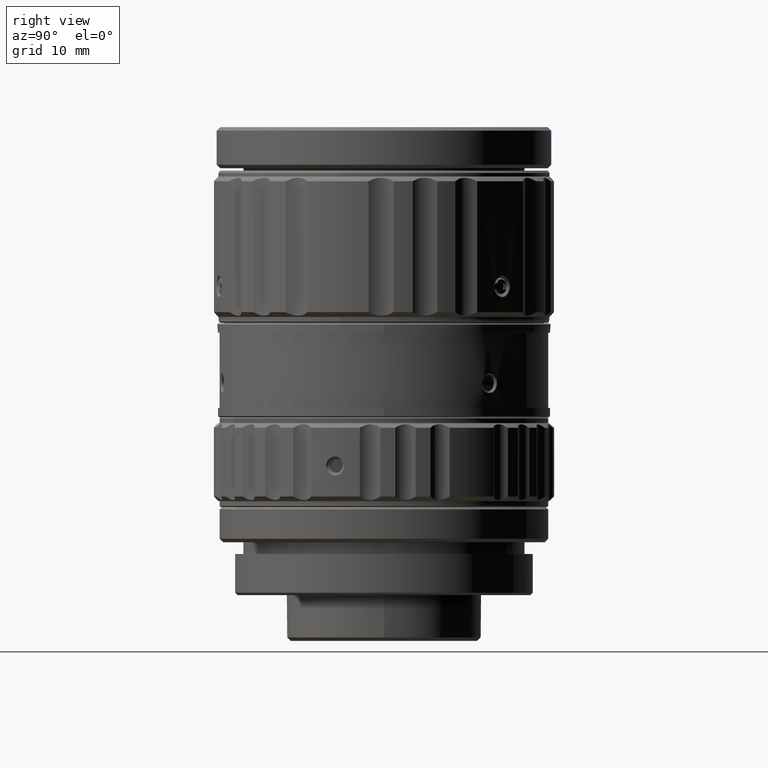
[diagram: clean part render]
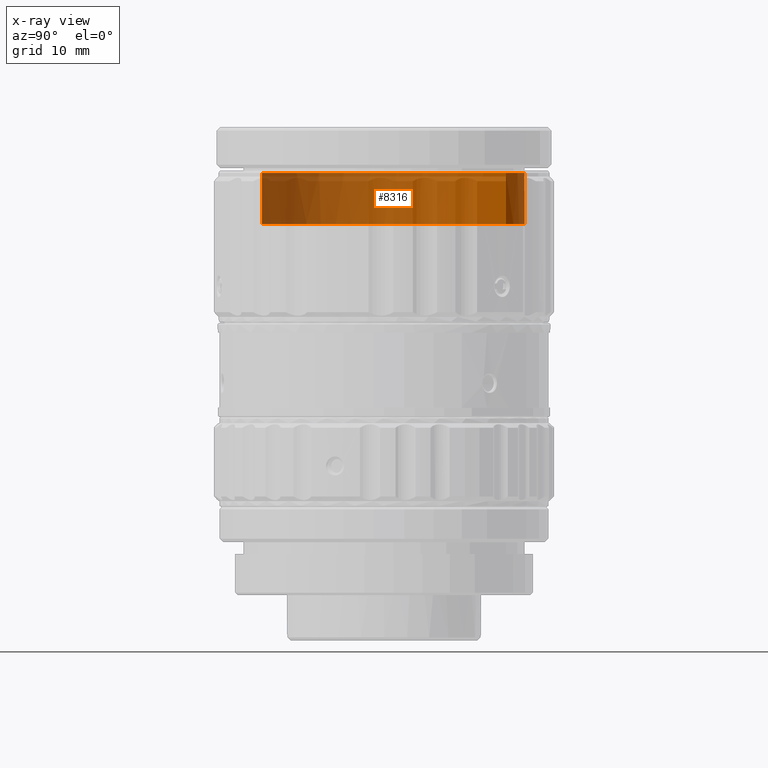
[diagram: x-ray — body ghosted, one internal face saturated and labeled with its STEP entity id]
A machine part, right view, then the same camera in x-ray: the body is ghosted and one INTERNAL B-rep face — a face not visible from any outside direction — is saturated and labeled: STEP entity #8316.
In plain terms, the highlighted cylindrical surface (partial cylindrical patch) has radius 12 mm, axis along (0, 0, 1).
Its self-contained STEP definition (entity closure, byte-faithful):
#1952 = CIRCLE ( 'NONE', #9285, 12.00000728003000106 ) ;
#4436 = DIRECTION ( 'NONE',  ( -0.4999999999999731326, -0.8660254037844541397, 0.000000000000000000 ) ) ;
#7149 = CARTESIAN_POINT ( 'NONE',  ( 6.000003640014679895, 10.39231115010436746, 27.05000483460329974 ) ) ;
#8316 = ADVANCED_FACE ( 'NONE', ( #38855 ), #34539, .F. ) ;
#9285 = AXIS2_PLACEMENT_3D ( 'NONE', #55367, #42496, #28707 ) ;
#9627 = VERTEX_POINT ( 'NONE', #44480 ) ;
#9981 = CARTESIAN_POINT ( 'NONE',  ( 0.000000000000000000, 0.000000000000000000, 22.70000000000000284 ) ) ;
#11582 = DIRECTION ( 'NONE',  ( 0.000000000000000000, 0.000000000000000000, 1.000000000000000000 ) ) ;
#12864 = VERTEX_POINT ( 'NONE', #7149 ) ;
#13243 = AXIS2_PLACEMENT_3D ( 'NONE', #55751, #25645, #4436 ) ;
#17354 = VERTEX_POINT ( 'NONE', #52924 ) ;
#19474 = VECTOR ( 'NONE', #44453, 1000.000000000000000 ) ;
#19937 = CARTESIAN_POINT ( 'NONE',  ( -6.000003640014678119, -10.39231115010436923, 22.70000000000000284 ) ) ;
#20670 = VECTOR ( 'NONE', #20932, 1000.000000000000000 ) ;
#20932 = DIRECTION ( 'NONE',  ( 0.000000000000000000, 0.000000000000000000, 1.000000000000000000 ) ) ;
#21194 = ORIENTED_EDGE ( 'NONE', *, *, #34031, .T. ) ;
#22083 = ORIENTED_EDGE ( 'NONE', *, *, #22300, .F. ) ;
#22300 = EDGE_CURVE ( 'NONE', #36477, #9627, #35857, .T. ) ;
#25645 = DIRECTION ( 'NONE',  ( 0.000000000000000000, 0.000000000000000000, 1.000000000000000000 ) ) ;
#27441 = DIRECTION ( 'NONE',  ( -1.000000000000000000, 0.000000000000000000, 0.000000000000000000 ) ) ;
#27731 = CIRCLE ( 'NONE', #47895, 12.00000728003000106 ) ;
#28707 = DIRECTION ( 'NONE',  ( 1.000000000000000000, 0.000000000000000000, 0.000000000000000000 ) ) ;
#29048 = DIRECTION ( 'NONE',  ( 1.000000000000000000, 0.000000000000000000, 0.000000000000000000 ) ) ;
#29912 = AXIS2_PLACEMENT_3D ( 'NONE', #9981, #32881, #27441 ) ;
#32881 = DIRECTION ( 'NONE',  ( 0.000000000000000000, 0.000000000000000000, 1.000000000000000000 ) ) ;
#33249 = EDGE_CURVE ( 'NONE', #52981, #36477, #36282, .T. ) ;
#33288 = ORIENTED_EDGE ( 'NONE', *, *, #43964, .T. ) ;
#34031 = EDGE_CURVE ( 'NONE', #52981, #12864, #51880, .T. ) ;
#34539 = CYLINDRICAL_SURFACE ( 'NONE', #13243, 12.00000728002999750 ) ;
#35857 = LINE ( 'NONE', #53049, #19474 ) ;
#36282 = CIRCLE ( 'NONE', #29912, 12.00000728003000106 ) ;
#36477 = VERTEX_POINT ( 'NONE', #19937 ) ;
#38423 = CARTESIAN_POINT ( 'NONE',  ( 6.000003640014678119, 10.39231115010436568, -22.23103380644400318 ) ) ;
#38855 = FACE_OUTER_BOUND ( 'NONE', #52784, .T. ) ;
#42496 = DIRECTION ( 'NONE',  ( 0.000000000000000000, 0.000000000000000000, 1.000000000000000000 ) ) ;
#43964 = EDGE_CURVE ( 'NONE', #12864, #17354, #27731, .T. ) ;
#44453 = DIRECTION ( 'NONE',  ( 0.000000000000000000, 0.000000000000000000, 1.000000000000000000 ) ) ;
#44480 = CARTESIAN_POINT ( 'NONE',  ( -6.000003640014678119, -10.39231115010436923, 27.05000483460329974 ) ) ;
#47895 = AXIS2_PLACEMENT_3D ( 'NONE', #50558, #11582, #29048 ) ;
#49109 = EDGE_CURVE ( 'NONE', #17354, #9627, #1952, .T. ) ;
#50090 = ORIENTED_EDGE ( 'NONE', *, *, #33249, .F. ) ;
#50434 = ORIENTED_EDGE ( 'NONE', *, *, #49109, .T. ) ;
#50558 = CARTESIAN_POINT ( 'NONE',  ( 0.000000000000000000, 0.000000000000000000, 27.05000483460329974 ) ) ;
#50868 = CARTESIAN_POINT ( 'NONE',  ( 6.000003640014679895, 10.39231115010436746, 22.70000000000000284 ) ) ;
#51880 = LINE ( 'NONE', #38423, #20670 ) ;
#52784 = EDGE_LOOP ( 'NONE', ( #50090, #21194, #33288, #50434, #22083 ) ) ;
#52924 = CARTESIAN_POINT ( 'NONE',  ( -11.53514734962456068, 3.307650276552863478, 27.05000483460329974 ) ) ;
#52981 = VERTEX_POINT ( 'NONE', #50868 ) ;
#53049 = CARTESIAN_POINT ( 'NONE',  ( -6.000003640014676343, -10.39231115010436746, -22.23103380644400318 ) ) ;
#55367 = CARTESIAN_POINT ( 'NONE',  ( 0.000000000000000000, 0.000000000000000000, 27.05000483460329974 ) ) ;
#55751 = CARTESIAN_POINT ( 'NONE',  ( 0.000000000000000000, 0.000000000000000000, -22.23103380644400318 ) ) ;